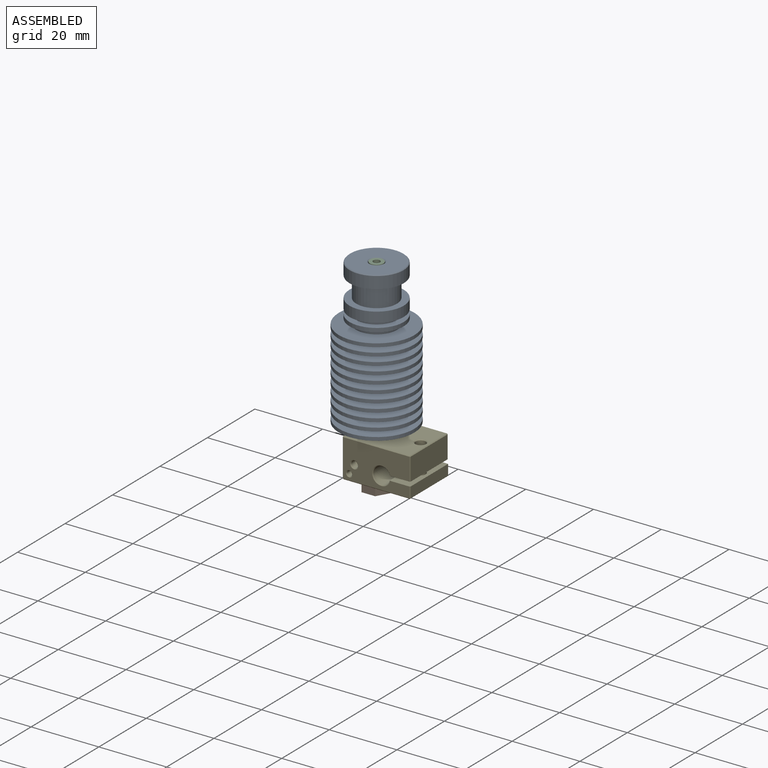
[diagram: assembled view]
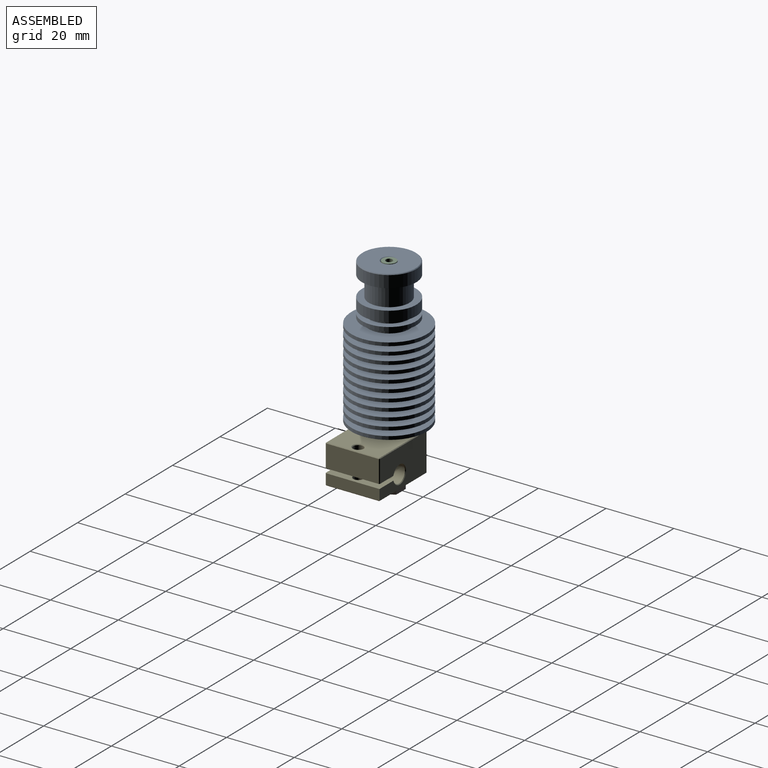
[diagram: assembled view, second angle]
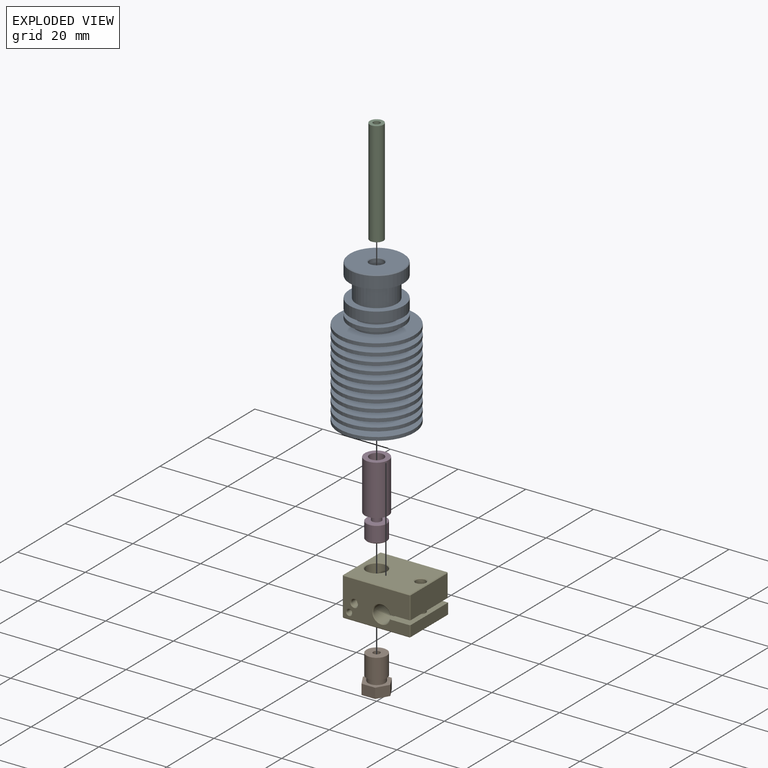
[diagram: exploded view]
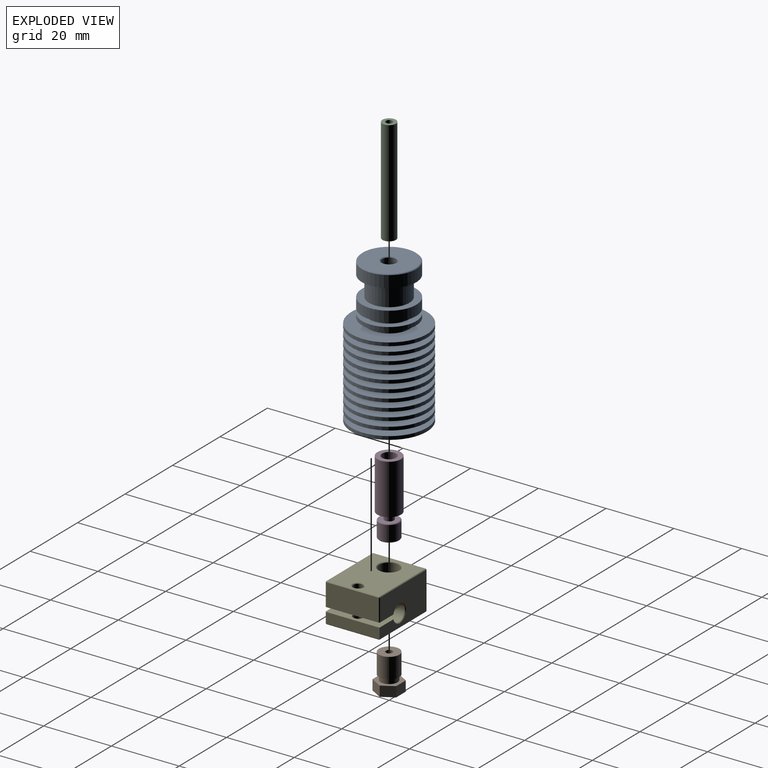
[diagram: exploded view, second angle]
ASSEMBLY  parts=5 mates=4
PART A: 62 faces, bbox 22.3x22.3x42.7 mm
  f0: cone r=0mm half-angle=59deg, axis (0,0,-1), area 26.3mm2, adj f57,f59
  f1: plane 15.6x15.6mm, normal (0,0,1), area 174.5mm2, adj f58,f61
  f2: plane 22.3x22.3mm, normal (0,0,-1), area 347.6mm2, adj f3,f60
  f3: cylinder r=11.15mm len=22.3mm, axis (0,0,1), area 70.1mm2, adj f2,f4
  f4: plane 22.3x22.3mm, normal (0,0,1), area 277.5mm2, adj f3,f5
  f5: cylinder r=6mm len=12mm, axis (0,0,1), area 56.5mm2, adj f4,f6
  f6: plane 22.3x22.3mm, normal (0,0,-1), area 277.5mm2, adj f5,f7
  f7: cylinder r=11.15mm len=22.3mm, axis (0,0,1), area 70.1mm2, adj f6,f8
  f8: plane 22.3x22.3mm, normal (0,0,1), area 277.5mm2, adj f7,f9
  f9: cylinder r=6mm len=12mm, axis (0,0,1), area 56.5mm2, adj f8,f10
  f10: plane 22.3x22.3mm, normal (0,0,-1), area 277.5mm2, adj f9,f11
  f11: cylinder r=11.15mm len=22.3mm, axis (0,0,1), area 70.1mm2, adj f10,f12
  f12: plane 22.3x22.3mm, normal (0,0,1), area 277.5mm2, adj f11,f13
  f13: cylinder r=6mm len=12mm, axis (0,0,1), area 56.5mm2, adj f12,f14
  f14: plane 22.3x22.3mm, normal (0,0,-1), area 277.5mm2, adj f13,f15
  f15: cylinder r=11.15mm len=22.3mm, axis (0,0,1), area 70.1mm2, adj f14,f16
  f16: plane 22.3x22.3mm, normal (0,0,1), area 277.5mm2, adj f15,f17
  f17: cylinder r=6mm len=12mm, axis (0,0,1), area 56.5mm2, adj f16,f18
  f18: plane 22.3x22.3mm, normal (0,0,-1), area 277.5mm2, adj f17,f19
  f19: cylinder r=11.15mm len=22.3mm, axis (0,0,1), area 70.1mm2, adj f18,f20
  f20: plane 22.3x22.3mm, normal (0,0,1), area 277.5mm2, adj f19,f21
  f21: cylinder r=6mm len=12mm, axis (0,0,1), area 56.5mm2, adj f20,f22
  f22: plane 22.3x22.3mm, normal (0,0,-1), area 277.5mm2, adj f21,f23
  f23: cylinder r=11.15mm len=22.3mm, axis (0,0,1), area 70.1mm2, adj f22,f24
  f24: plane 22.3x22.3mm, normal (0,0,1), area 277.5mm2, adj f23,f25
  f25: cylinder r=6mm len=12mm, axis (0,0,1), area 56.5mm2, adj f24,f26
  f26: plane 22.3x22.3mm, normal (0,0,-1), area 277.5mm2, adj f25,f27
  f27: cylinder r=11.15mm len=22.3mm, axis (0,0,1), area 70.1mm2, adj f26,f28
  f28: plane 22.3x22.3mm, normal (0,0,1), area 277.5mm2, adj f27,f29
  f29: cylinder r=6mm len=12mm, axis (0,0,1), area 56.5mm2, adj f28,f30
  f30: plane 22.3x22.3mm, normal (0,0,-1), area 277.5mm2, adj f29,f31
  f31: cylinder r=11.15mm len=22.3mm, axis (0,0,1), area 70.1mm2, adj f30,f32
  f32: plane 22.3x22.3mm, normal (0,0,1), area 277.5mm2, adj f31,f33
  f33: cylinder r=6mm len=12mm, axis (0,0,1), area 56.5mm2, adj f32,f34
  f34: plane 22.3x22.3mm, normal (0,0,-1), area 277.5mm2, adj f33,f35
  f35: cylinder r=11.15mm len=22.3mm, axis (0,0,1), area 70.1mm2, adj f34,f36
  f36: plane 22.3x22.3mm, normal (0,0,1), area 277.5mm2, adj f35,f37
  f37: cylinder r=6mm len=12mm, axis (0,0,1), area 56.5mm2, adj f36,f38
  f38: plane 22.3x22.3mm, normal (0,0,-1), area 277.5mm2, adj f37,f39
  f39: cylinder r=11.15mm len=22.3mm, axis (0,0,1), area 70.1mm2, adj f38,f40
  f40: plane 22.3x22.3mm, normal (0,0,1), area 277.5mm2, adj f39,f41
  f41: cylinder r=6mm len=12mm, axis (0,0,1), area 56.5mm2, adj f40,f42
  f42: plane 22.3x22.3mm, normal (0,0,-1), area 277.5mm2, adj f41,f43
  f43: cylinder r=11.15mm len=22.3mm, axis (0,0,1), area 70.1mm2, adj f42,f44
  f44: plane 22.3x22.3mm, normal (0,0,1), area 277.5mm2, adj f43,f45
  f45: cylinder r=6mm len=12mm, axis (0,0,1), area 56.5mm2, adj f44,f46
  f46: plane 16x16mm, normal (0,0,-1), area 88mm2, adj f45,f47
  f47: cylinder r=8mm len=16mm, axis (0,0,1), area 57.8mm2, adj f46,f48
  f48: plane 16x16mm, normal (0,0,1), area 88mm2, adj f47,f49
  f49: cylinder r=6mm len=12mm, axis (0,0,1), area 50.9mm2, adj f48,f50
  f50: plane 16x16mm, normal (0,0,-1), area 88mm2, adj f49,f51
  f51: cylinder r=8mm len=16mm, axis (0,0,1), area 150.8mm2, adj f50,f52
  f52: plane 16x16mm, normal (0,0,1), area 88mm2, adj f51,f53
  f53: cylinder r=6mm len=12mm, axis (0,0,1), area 226.2mm2, adj f52,f54
  f54: plane 16x16mm, normal (0,0,-1), area 88mm2, adj f53,f55
  f55: cylinder r=8mm len=16mm, axis (0,0,1), area 175.9mm2, adj f54,f61
  f56: cylinder r=3.5mm len=14.49mm, axis (0,0,-1), area 318.6mm2, adj f59,f60
  f57: cylinder r=2.1mm len=26.86mm, axis (0,0,1), area 354.4mm2, adj f0,f58
  f58: cone r=2.1mm half-angle=45deg, axis (0,0,1), area 3.9mm2, adj f1,f57
  f59: cone r=3.4mm half-angle=29.5deg, axis (0,0,-1), area 4.3mm2, adj f0,f56
  f60: cone r=3.5mm half-angle=45deg, axis (0,0,-1), area 6.4mm2, adj f2,f56
  f61: cone r=7.8mm half-angle=45deg, axis (0,0,-1), area 14mm2, adj f1,f55
PART B: 19 faces, bbox 8.1x7x11.9 mm
  f0: cone r=0mm half-angle=59deg, axis (0,0,1), area 0.8mm2, adj f17,f18
  f1: cone r=0mm half-angle=59deg, axis (0,0,1), area 2.7mm2, adj f16,f17
  f2: cylinder r=2.5mm len=5mm, axis (0,0,-1), area 23.6mm2, adj f4,f12
  f3: plane 6x6mm, normal (0,0,1), area 25.1mm2, adj f5,f16
  f4: plane 6x6mm, normal (0,0,-1), area 8.6mm2, adj f2,f5
  f5: cylinder r=3mm len=6mm, axis (0,0,-1), area 113.1mm2, adj f3,f4
  f6: plane 4.04x3mm, normal (0,-1,0), area 12.1mm2, adj f7,f11,f12,f15
  f7: plane 3.5x3mm, normal (-0.87,-0.5,0), area 12.1mm2, adj f6,f8,f12,f15
  f8: plane 3.5x3mm, normal (-0.87,0.5,0), area 12.1mm2, adj f7,f9,f12,f15
  f9: plane 4.04x3mm, normal (0,1,0), area 12.1mm2, adj f8,f10,f12,f15
  f10: plane 3.5x3mm, normal (0.87,0.5,0), area 12.1mm2, adj f9,f11,f12,f15
  f11: plane 3.5x3mm, normal (0.87,-0.5,0), area 12.1mm2, adj f6,f10,f12,f15
  f12: plane 8.08x7mm, normal (0,0,1), area 22.8mm2, adj f2,f6,f7,f8,f9,f10,f11
  f13: plane 0.88x0.88mm, normal (0,0,-1), area 0.5mm2, adj f14,f18
  f14: cone r=1.4mm half-angle=35deg, axis (0,0,1), area 9.7mm2, adj f13,f15
  f15: plane 8.08x7mm, normal (0,0,-1), area 36.3mm2, adj f6,f7,f8,f9,f10,f11,f14
  f16: cylinder r=1mm len=10.5mm, axis (0,0,1), area 66mm2, adj f1,f3
  f17: cylinder r=0.5mm len=1mm, axis (0,0,1), area 2.2mm2, adj f0,f1
  f18: cylinder r=0.17mm len=0.35mm, axis (0,0,1), area 0.2mm2, adj f0,f13
PART C: 4 faces, bbox 4x4x31 mm
  f0: plane 4x4mm, normal (0,0,1), area 9.4mm2, adj f1,f3
  f1: cylinder r=1mm len=31mm, axis (0,0,1), area 194.8mm2, adj f0,f2
  f2: plane 4x4mm, normal (0,0,-1), area 9.4mm2, adj f1,f3
  f3: cylinder r=2mm len=31mm, axis (0,0,1), area 389.6mm2, adj f0,f2
PART D: 13 faces, bbox 7x7x21.9 mm
  f0: cylinder r=1mm len=17.94mm, axis (0,0,1), area 112.7mm2, adj f9,f10
  f1: plane 7x7mm, normal (0,0,1), area 24.6mm2, adj f7,f8
  f2: plane 5.6x5.6mm, normal (0,0,-1), area 20.1mm2, adj f10,f11
  f3: cylinder r=3mm len=6mm, axis (0,0,-1), area 86.7mm2, adj f11,f12
  f4: plane 5.6x5.6mm, normal (0,0,1), area 18.5mm2, adj f5,f12
  f5: cylinder r=1.4mm len=2.8mm, axis (0,0,-1), area 18.5mm2, adj f4,f6
  f6: plane 7x7mm, normal (0,0,-1), area 32.3mm2, adj f5,f7
  f7: cylinder r=3.5mm len=14.8mm, axis (0,0,-1), area 325.5mm2, adj f1,f6
  f8: cylinder r=2.1mm len=4.2mm, axis (0,0,1), area 40.9mm2, adj f1,f9
  f9: cone r=0mm half-angle=59deg, axis (0,0,1), area 12.5mm2, adj f0,f8
  f10: cone r=1mm half-angle=45deg, axis (0,0,-1), area 2mm2, adj f0,f2
  f11: cone r=2.8mm half-angle=45deg, axis (0,0,1), area 5.2mm2, adj f2,f3
  f12: cone r=3mm half-angle=45deg, axis (0,0,-1), area 5.2mm2, adj f3,f4
PART E: 46 faces, bbox 20x16x11.5 mm
  f0: plane 15.8x3.15mm, normal (1,0,0), area 49.8mm2, adj f6,f16,f32,f37
  f1: plane 19.6x11.1mm, normal (0,-1,0), area 180mm2, adj f15,f16,f22,f23,f25,f26,f31,f32
  f2: cylinder r=1.5mm len=3.15mm, axis (0,0,1), area 29.7mm2, adj f16,f18
  f3: cylinder r=2.5mm len=15.6mm, axis (0,-1,0), area 224.5mm2, adj f15,f16,f19,f22
  f4: plane 15.6x11.1mm, normal (-1,0,0), area 173.2mm2, adj f34,f39,f42,f45
  f5: plane 15.6x6.65mm, normal (1,0,0), area 103.7mm2, adj f15,f26,f27,f28
  f6: plane 19.8x11.1mm, normal (0,1,0), area 188mm2, adj f0,f15,f16,f19,f27,f33,f41,f42
  f7: plane 19.6x15.6mm, normal (0,0,-1), area 264.5mm2, adj f17,f18,f37,f40,f41,f45
  f8: plane 19.6x15.6mm, normal (0,0,1), area 264.5mm2, adj f20,f21,f28,f31,f33,f34
  f9: cylinder r=3mm len=11.1mm, axis (0,0,1), area 209.2mm2, adj f17,f20
  f10: cylinder r=1.5mm len=6.65mm, axis (0,0,1), area 62.7mm2, adj f15,f21
  f11: cone r=0mm half-angle=59deg, axis (0,-1,0), area 2.1mm2, adj f12
  f12: cylinder r=0.75mm len=4.3mm, axis (0,-1,0), area 20.3mm2, adj f11,f25
  f13: cone r=0mm half-angle=59deg, axis (0,-1,0), area 3mm2, adj f24
  f14: cylinder r=1mm len=2mm, axis (0,-1,0), area 10.6mm2, adj f23,f24
  f15: plane 16x6.09mm, normal (0,0,-1), area 90.2mm2, adj f1,f3,f5,f6,f10,f19,f22,f26
  f16: plane 16x6.09mm, normal (0,0,1), area 90.2mm2, adj f0,f1,f2,f3,f6,f19,f22,f32
  f17: cone r=3mm half-angle=45deg, axis (0,0,-1), area 5.5mm2, adj f7,f9
  f18: cone r=1.5mm half-angle=45deg, axis (0,0,-1), area 2.8mm2, adj f2,f7
  f19: cone r=2.5mm half-angle=45deg, axis (0,1,0), area 4.2mm2, adj f3,f6,f15,f16
  f20: cone r=3mm half-angle=45deg, axis (0,0,1), area 5.5mm2, adj f8,f9
  f21: cone r=1.5mm half-angle=45deg, axis (0,0,1), area 2.8mm2, adj f8,f10
  f22: cone r=2.5mm half-angle=45deg, axis (0,-1,0), area 4.2mm2, adj f1,f3,f15,f16
  f23: cone r=1mm half-angle=45deg, axis (0,-1,0), area 2mm2, adj f1,f14
  f24: cone r=0.9mm half-angle=29.5deg, axis (0,-1,0), area 1.2mm2, adj f13,f14
  f25: cone r=0.75mm half-angle=45deg, axis (0,-1,0), area 1.5mm2, adj f1,f12
  f26: plane 6.65x0.2mm, normal (0.71,-0.71,0), area 1.9mm2, adj f1,f5,f15,f29
  f27: plane 6.65x0.2mm, normal (0.71,0.71,0), area 1.9mm2, adj f5,f6,f15,f30
  f28: plane 15.6x0.2mm, normal (0.71,0,0.71), area 4.4mm2, adj f5,f8,f29,f30
  f29: plane 0.2x0.2mm, normal (0.58,-0.58,0.58), area 0mm2, adj f26,f28,f31
  f30: plane 0.2x0.2mm, normal (0.58,0.58,0.58), area 0mm2, adj f27,f28,f33
  f31: plane 19.6x0.2mm, normal (0,-0.71,0.71), area 5.5mm2, adj f1,f8,f29,f35
  f32: plane 3.15x0.2mm, normal (0.71,-0.71,0), area 0.9mm2, adj f0,f1,f16,f36
  f33: plane 19.6x0.2mm, normal (0,0.71,0.71), area 5.5mm2, adj f6,f8,f30,f38
  f34: plane 15.6x0.2mm, normal (-0.71,0,0.71), area 4.4mm2, adj f4,f8,f35,f38
  f35: plane 0.2x0.2mm, normal (-0.58,-0.58,0.58), area 0mm2, adj f31,f34,f39
  f36: plane 0.2x0.2mm, normal (0.58,-0.58,-0.58), area 0mm2, adj f32,f37,f40
  f37: plane 15.8x0.2mm, normal (0.71,0,-0.71), area 4.4mm2, adj f0,f7,f36,f41
  f38: plane 0.2x0.2mm, normal (-0.58,0.58,0.58), area 0mm2, adj f33,f34,f42
  f39: plane 11.1x0.2mm, normal (-0.71,-0.71,0), area 3.1mm2, adj f1,f4,f35,f43
  f40: plane 19.6x0.2mm, normal (0,-0.71,-0.71), area 5.5mm2, adj f1,f7,f36,f43
  f41: plane 19.8x0.2mm, normal (0,0.71,-0.71), area 5.6mm2, adj f6,f7,f37,f44
  f42: plane 11.1x0.2mm, normal (-0.71,0.71,0), area 3.1mm2, adj f4,f6,f38,f44
  f43: plane 0.2x0.2mm, normal (-0.58,-0.58,-0.58), area 0mm2, adj f39,f40,f45
  f44: plane 0.2x0.2mm, normal (-0.58,0.58,-0.58), area 0mm2, adj f41,f42,f45
  f45: plane 15.6x0.2mm, normal (-0.71,0,-0.71), area 4.4mm2, adj f4,f7,f43,f44
PLACE A at identity
PLACE B t=(0,0,-0.5)mm
PLACE C at identity
PLACE D at identity
PLACE E at identity
MATE fastened D.f0 <-> A.f0  axis (0,0,-1) through (0,0,-21.35)mm
MATE fastened C.f1 <-> D.f0  axis (0,0,1) through (0,0,-9.65)mm
MATE fastened B.f0 <-> E.f9  axis (0,0,-1) through (0,0,-34.95)mm
MATE fastened E.f9 <-> D.f0  axis (0,0,1) through (0,0,-23.45)mm
